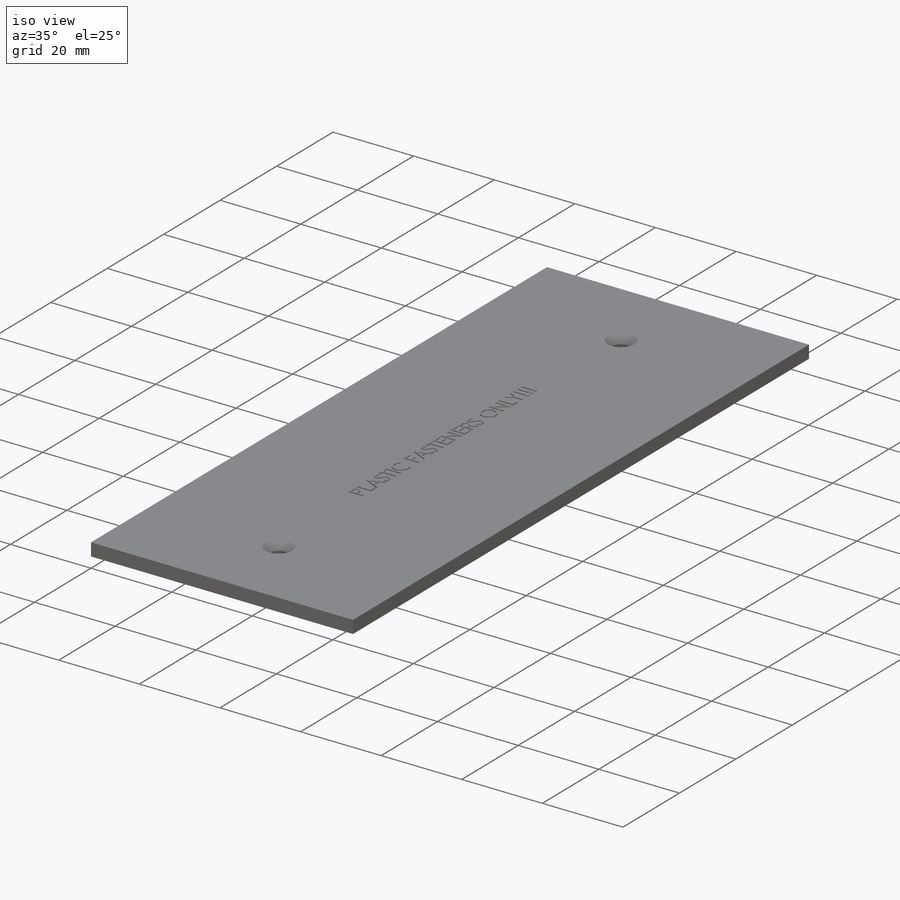
[diagram: iso view]
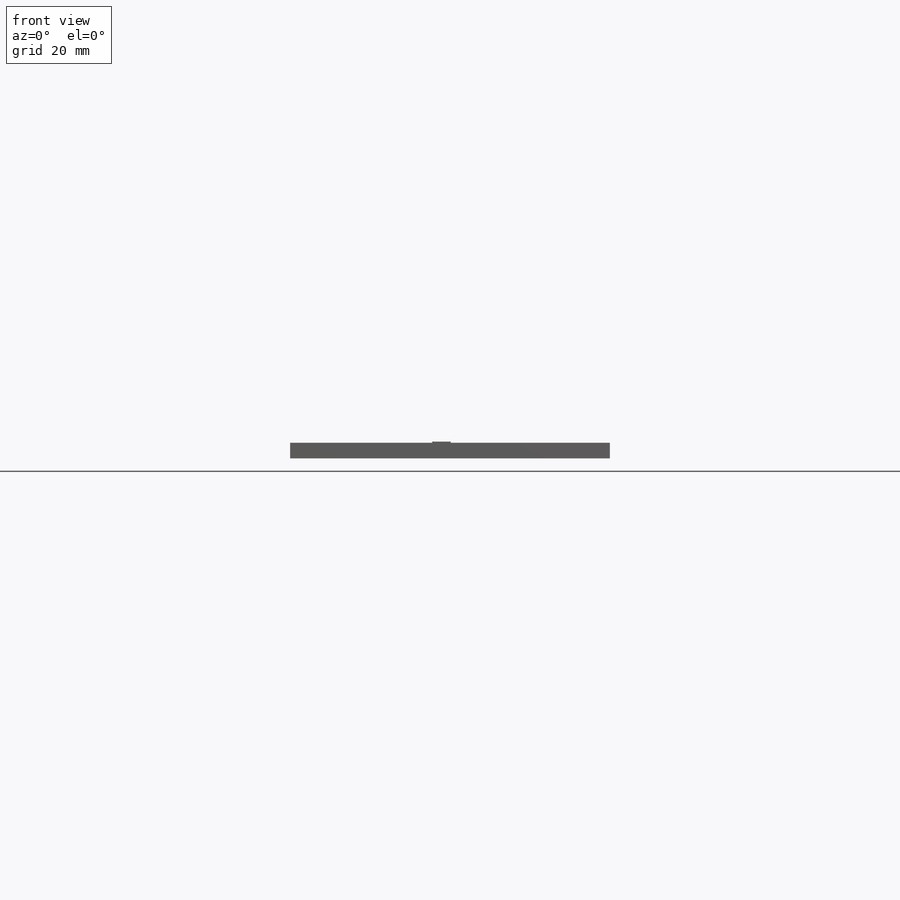
[diagram: front view]
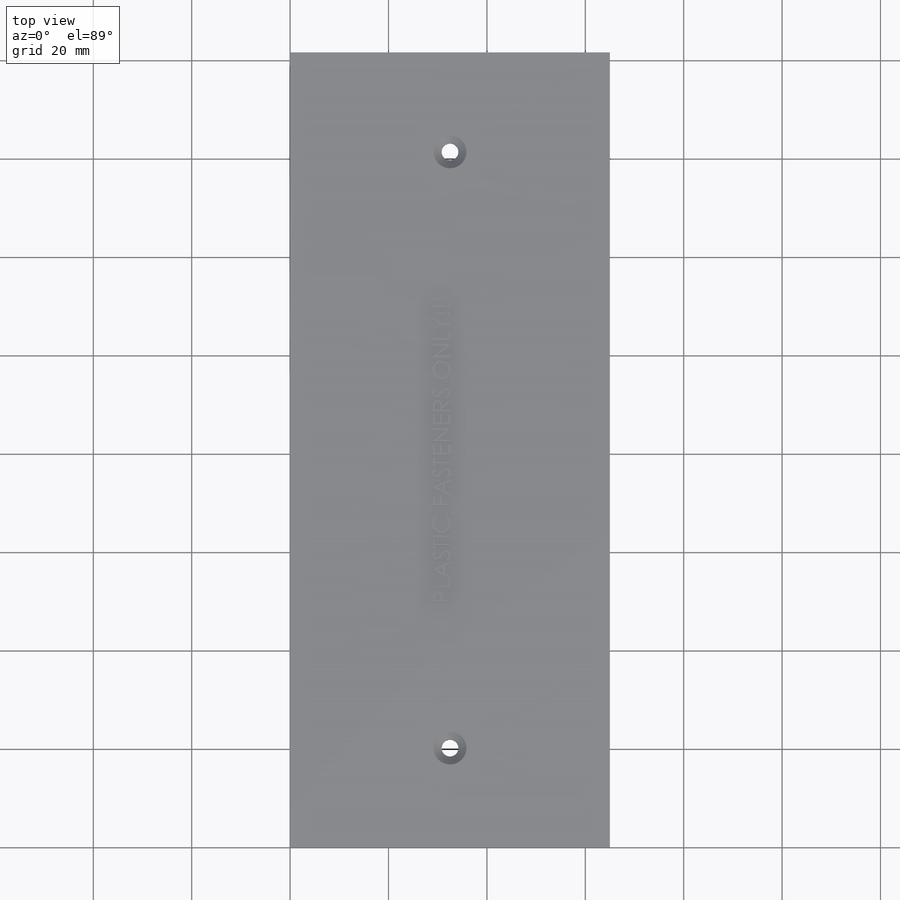
[diagram: top view]
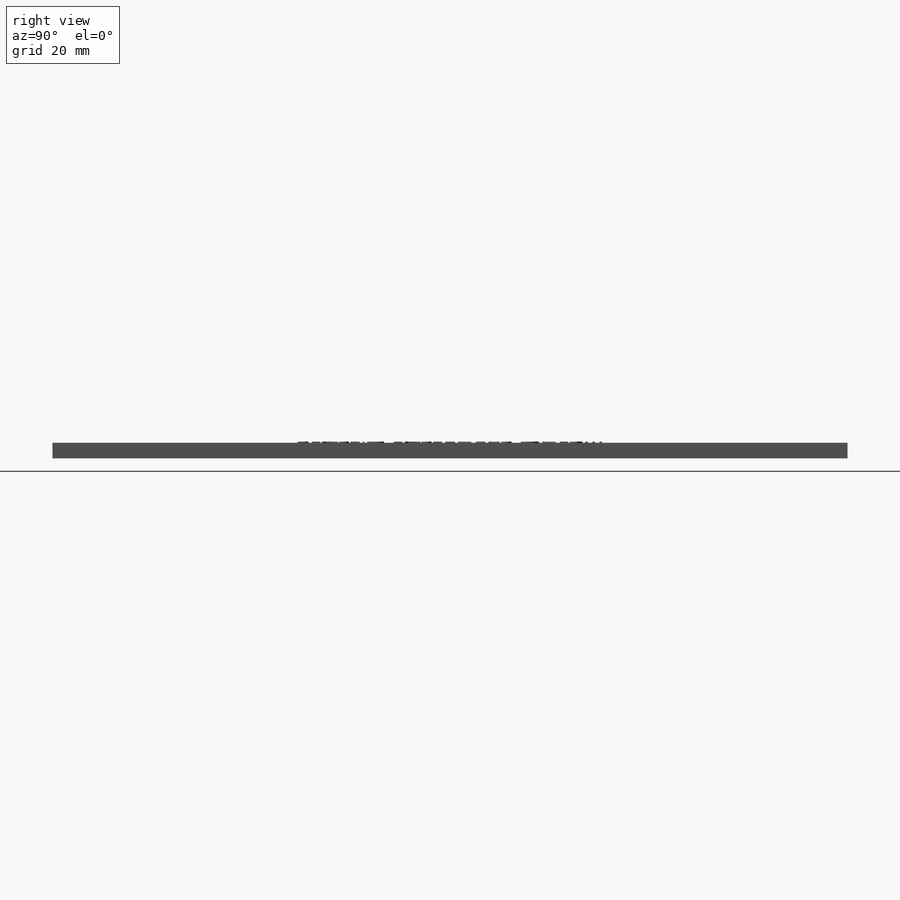
[diagram: right view]
SOLIDWORKS PART (.sldprt)
format: sldprt  version: not decoded by parser v0  size: 437,248 bytes
history: native  units: mm
features: sketch x4, extrude x2, material x1, hole x1 (+11 scaffold rows collapsed)
feature tree (19):
  scaffold x11  (default folders/planes/origin — collapsed)
  material  "ABS"
  sketch  "Sketch1"  dims[D1=65.0mm D2=161.6mm]
  extrude  "Boss-Extrude1"  Depth=3.175mm
  hole  "CSK for M3 SFHCS1"  Diameter=3.4mm Depth=3.175mm
  sketch  "Sketch3"  dims[D1=20.2mm D2=20.2mm]
  sketch  "Sketch2"  dims[hole-wizard template sketch: 56 standard entries collapsed; hole parameters kept: c17.Near C'Sink Dia.=6.72mm c17.D4=~3.666174mm c17.Near C'Sink Angle=90.0deg]
  sketch  "Sketch4"
  extrude  "Boss-Extrude2"  Depth=0.25mm
decode coverage: 6 of 7 modeling features carry decoded parameters
note: ~ marks probable driven/reference dimensions
note: suppression state not decoded; provenance and decode notes live in map.json
